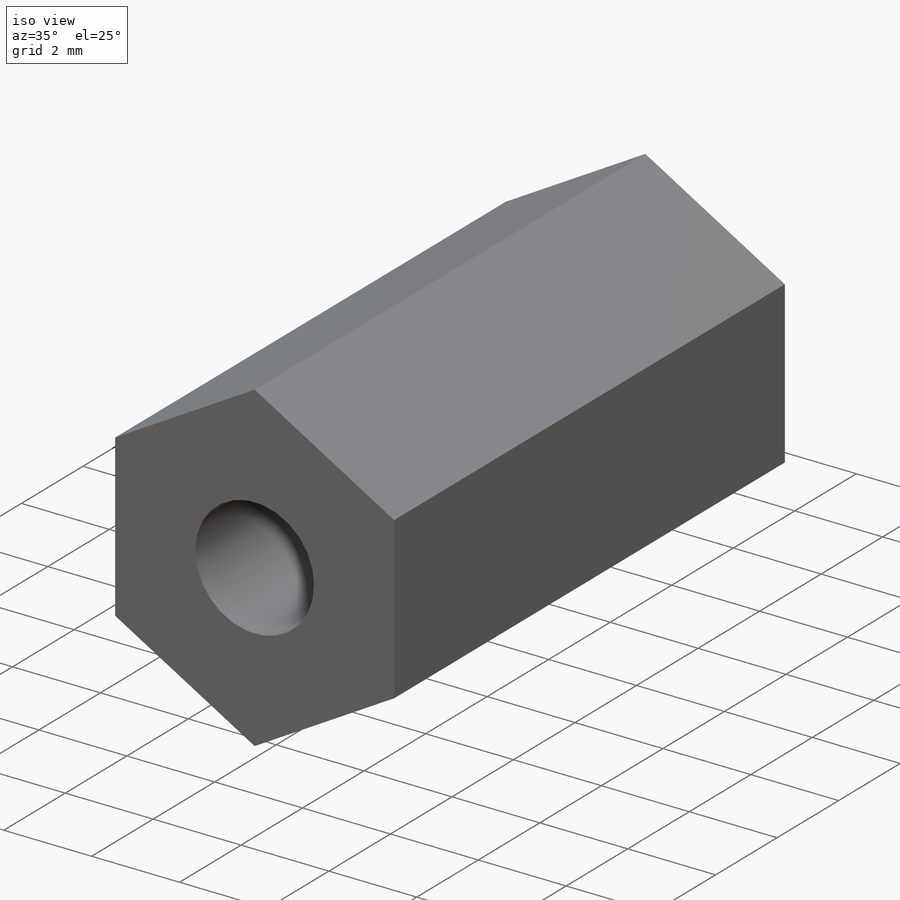
[diagram: iso view]
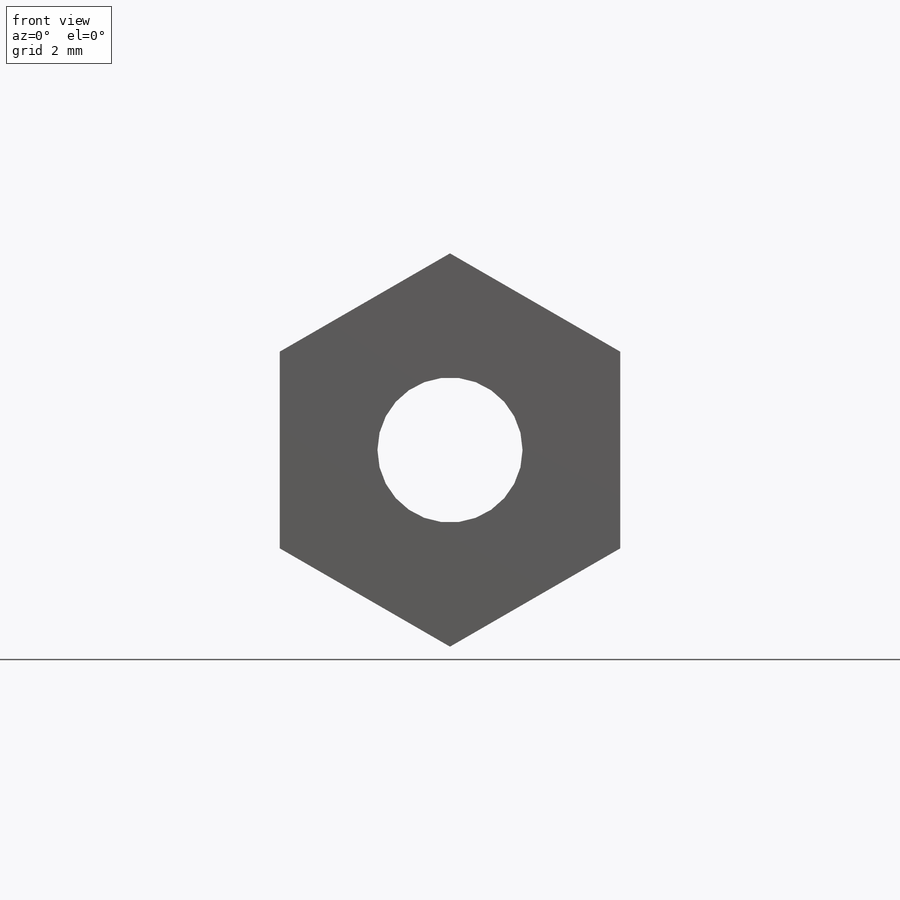
[diagram: front view]
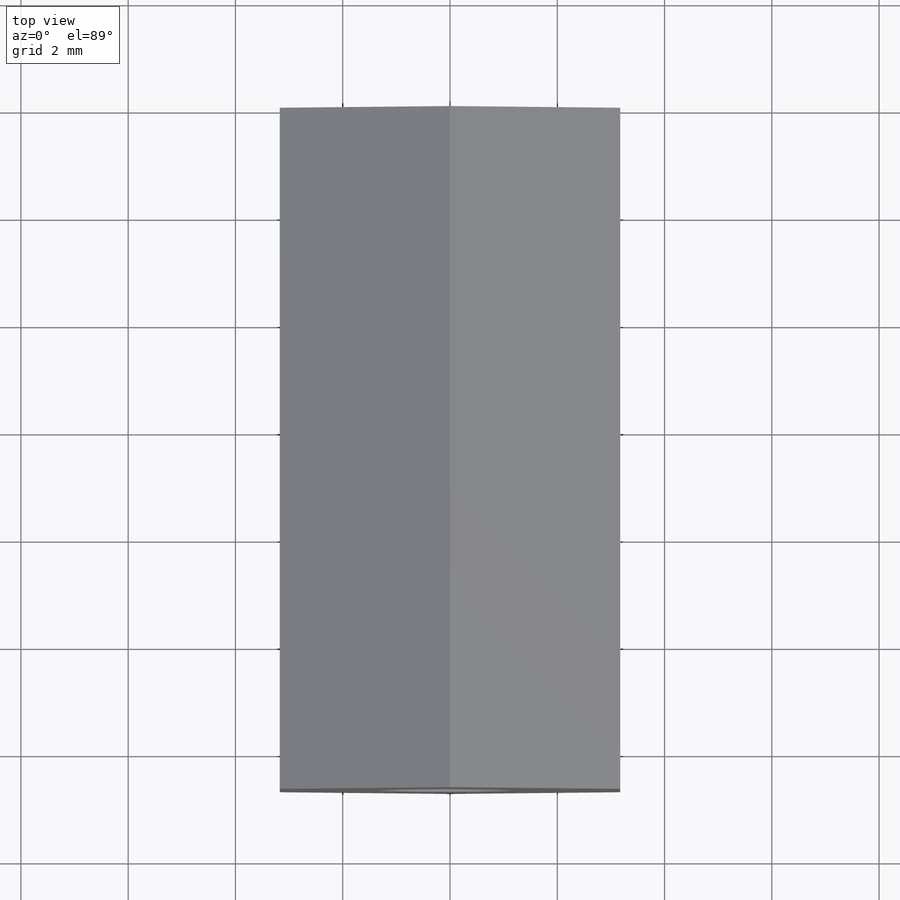
[diagram: top view]
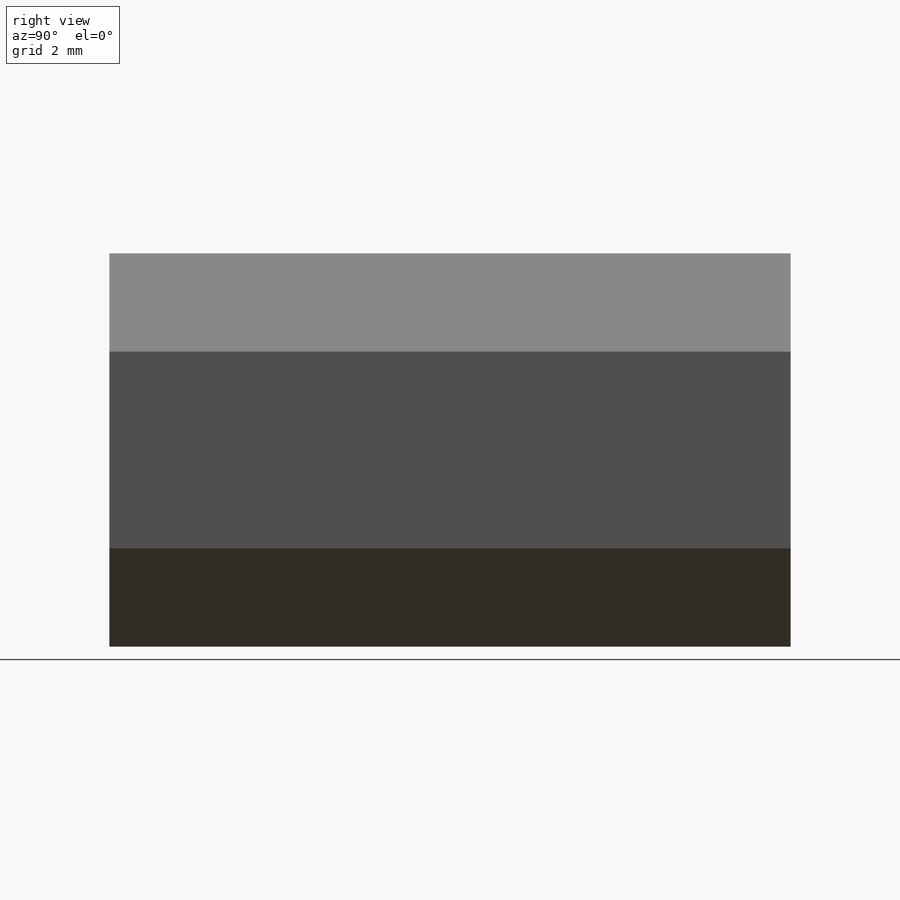
[diagram: right view]
SOLIDWORKS PART (.sldprt)
format: sldprt  version: not decoded by parser v0  size: 171,520 bytes
history: native  units: mm
features: sketch x4, material x1, extrude x1, hole x1, thread x1 (+13 scaffold rows collapsed)
feature tree (21):
  scaffold x13  (default folders/planes/origin — collapsed)
  material  "Material <not specified>"
  sketch  "Sketch1"  dims[D1=6.35mm]
  extrude  "Boss-Extrude1"  Depth=12.7mm
  sketch  "Sketch2"
  hole  "#6-32 Tapped Hole1"  Diameter=2.7051mm Depth=12.7mm
  sketch  "Sketch4"
  sketch  "Sketch5"  dims[hole-wizard template sketch: 60 standard entries collapsed; hole parameters kept: c18.Thru Tap Drill Depth=12.7mm]
  thread  "Hole Thread1"  Diameter=3.5052mm  [1 undecoded]
decode coverage: 5 of 7 modeling features carry decoded parameters
note: ~ marks probable driven/reference dimensions
note: 1 parameter value undecoded
note: suppression state not decoded; provenance and decode notes live in map.json
